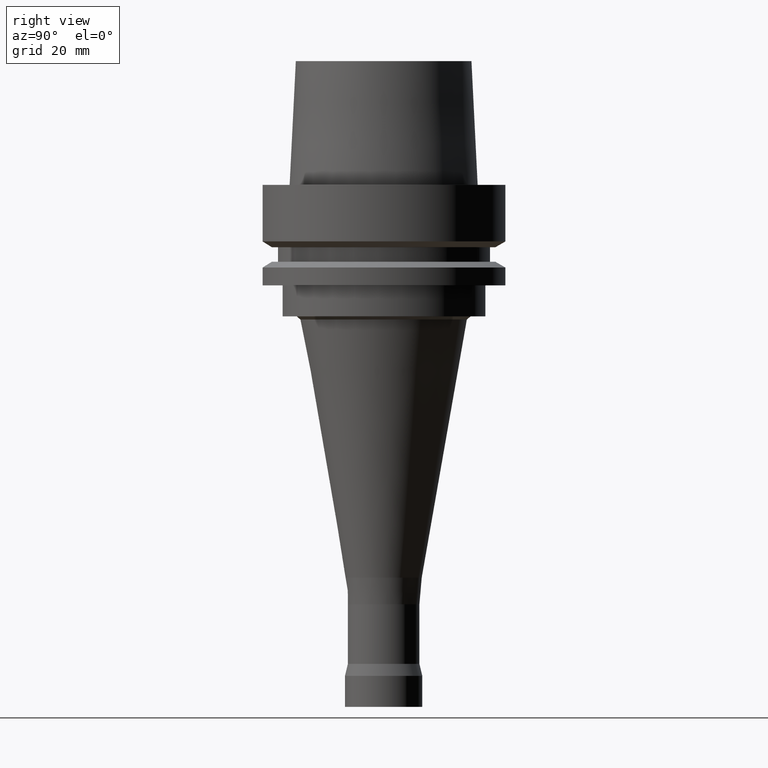
[diagram: clean part render]
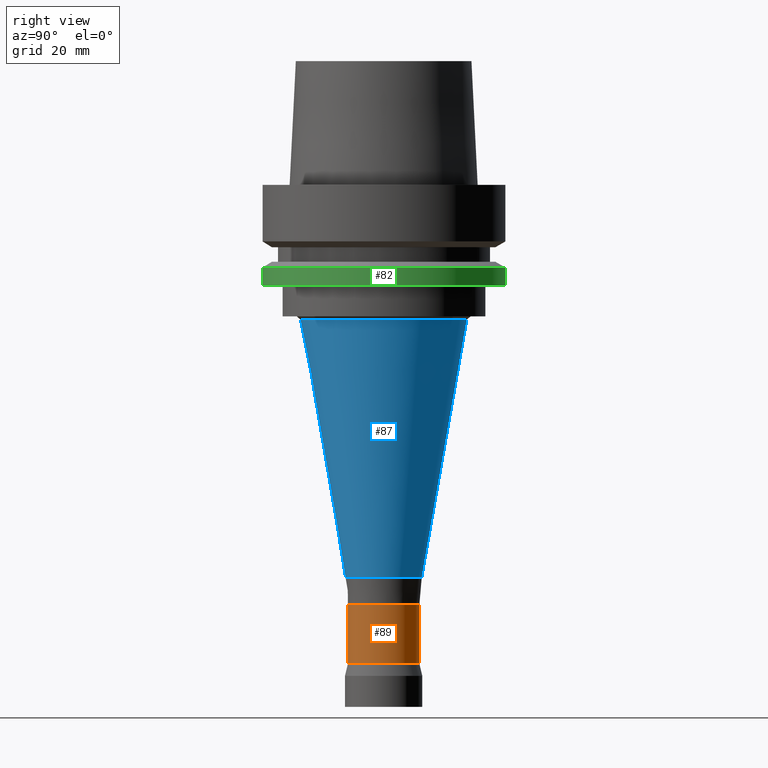
[diagram: same view with three faces highlighted in distinct colors, each labeled with its STEP entity id]
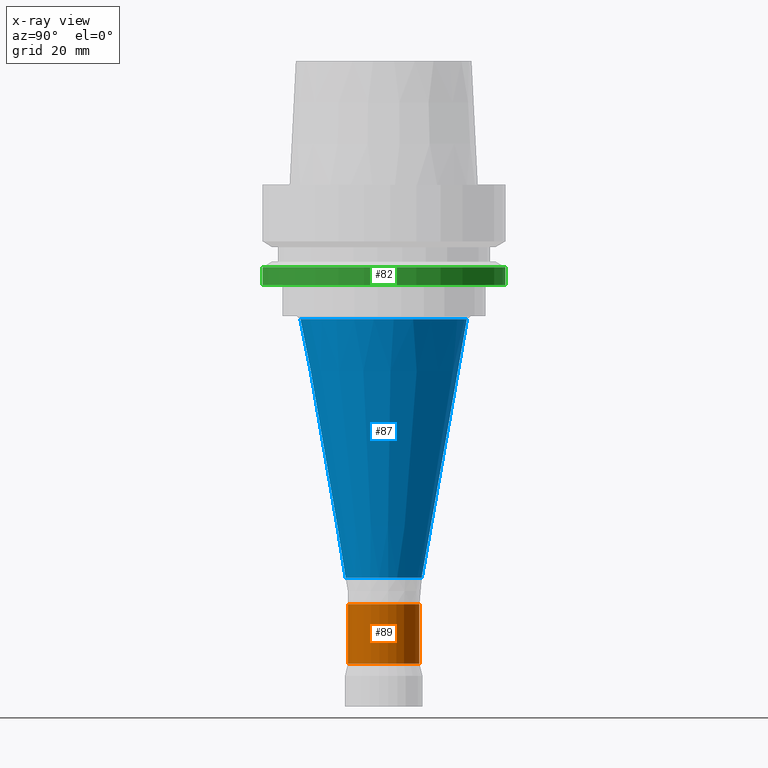
[diagram: x-ray of the same camera — body ghosted, the three highlighted faces saturated]
A machine part, right view with three faces highlighted in distinct colors.
The next image is the same camera in x-ray (body ghosted, the three faces saturated) — at least one of them is partly hidden behind the body in this view.
Their STEP definitions:

[orange] entity #89 — the highlighted cylindrical surface (bore or boss wall) has radius 9.25 mm, axis along (-0, -0, 1).
#89=ADVANCED_FACE('',(#138,#139),#140,.T.);
#138=FACE_BOUND('',#196,.T.);
#139=FACE_BOUND('',#197,.T.);
#140=CYLINDRICAL_SURFACE('',#198,9.25);
#196=EDGE_LOOP('',(#282));
#197=EDGE_LOOP('',(#283));
#198=AXIS2_PLACEMENT_3D('',#284,#285,#286);
#282=ORIENTED_EDGE('',*,*,#325,.F.);
#283=ORIENTED_EDGE('',*,*,#324,.T.);
#284=CARTESIAN_POINT('',(7.11351696785154E-015,1.42270339357031E-014,-116.172548245));
#285=DIRECTION('',(-6.12323399573677E-017,-1.22464679914735E-016,1.0));
#286=DIRECTION('',(-1.23259516440783E-032,1.0,1.22464679914735E-016));
#324=EDGE_CURVE('',#357,#357,#358,.T.);
#325=EDGE_CURVE('',#359,#359,#360,.T.);
#357=VERTEX_POINT('',#395);
#358=CIRCLE('',#396,9.25);
#359=VERTEX_POINT('',#397);
#360=CIRCLE('',#398,9.25);
#395=CARTESIAN_POINT('',(6.64183341901586E-015,9.25000000000001,-108.46937131));
#396=AXIS2_PLACEMENT_3D('',#447,#448,#449);
#397=CARTESIAN_POINT('',(7.58520051668721E-015,9.25000000000002,-123.87572518));
#398=AXIS2_PLACEMENT_3D('',#450,#451,#452);
#447=CARTESIAN_POINT('',(6.64183341901586E-015,1.32836668380317E-014,-108.46937131));
#448=DIRECTION('',(6.12323399573677E-017,1.22464679914735E-016,-1.0));
#449=DIRECTION('',(-1.23259516440783E-032,1.0,1.22464679914735E-016));
#450=CARTESIAN_POINT('',(7.58520051668721E-015,1.51704010333744E-014,-123.87572518));
#451=DIRECTION('',(6.12323399573677E-017,1.22464679914735E-016,-1.0));
#452=DIRECTION('',(-1.23259516440783E-032,1.0,1.22464679914735E-016));

[blue] entity #87 — the highlighted conical surface has half-angle 9.914 deg.
#87=ADVANCED_FACE('',(#132,#133),#134,.T.);
#132=FACE_BOUND('',#190,.T.);
#133=FACE_BOUND('',#191,.T.);
#134=CONICAL_SURFACE('',#192,15.68113328,0.173035526577941);
#190=EDGE_LOOP('',(#272));
#191=EDGE_LOOP('',(#273));
#192=AXIS2_PLACEMENT_3D('',#274,#275,#276);
#272=ORIENTED_EDGE('',*,*,#323,.F.);
#273=ORIENTED_EDGE('',*,*,#322,.T.);
#274=CARTESIAN_POINT('',(4.17635984874932E-015,8.35271969749864E-015,-68.205132315));
#275=DIRECTION('',(-6.12323399573677E-017,-1.22464679914735E-016,1.0));
#276=DIRECTION('',(-1.23259516440783E-032,1.0,1.22464679914735E-016));
#322=EDGE_CURVE('',#353,#353,#354,.T.);
#323=EDGE_CURVE('',#355,#355,#356,.T.);
#353=VERTEX_POINT('',#391);
#354=CIRCLE('',#392,21.51493333);
#355=VERTEX_POINT('',#393);
#356=CIRCLE('',#394,9.84733323);
#391=CARTESIAN_POINT('',(2.13258932263372E-015,21.51493333,-34.82782667));
#392=AXIS2_PLACEMENT_3D('',#441,#442,#443);
#393=CARTESIAN_POINT('',(6.22013037486493E-015,9.84733323000001,-101.58243796));
#394=AXIS2_PLACEMENT_3D('',#444,#445,#446);
#441=CARTESIAN_POINT('',(2.13258932263372E-015,4.26517864526743E-015,-34.82782667));
#442=DIRECTION('',(6.12323399573676E-017,1.22464679914735E-016,-1.0));
#443=DIRECTION('',(-1.23259516440783E-032,1.0,1.22464679914735E-016));
#444=CARTESIAN_POINT('',(6.22013037486493E-015,1.24402607497299E-014,-101.58243796));
#445=DIRECTION('',(6.12323399573677E-017,1.22464679914735E-016,-1.0));
#446=DIRECTION('',(-1.23259516440783E-032,1.0,1.22464679914735E-016));

[green] entity #82 — the highlighted cylindrical surface (bore or boss wall) has radius 31.5 mm, axis along (-0, -0, 1).
#82=ADVANCED_FACE('',(#117,#118),#119,.T.);
#117=FACE_BOUND('',#175,.T.);
#118=FACE_BOUND('',#176,.T.);
#119=CYLINDRICAL_SURFACE('',#177,31.5);
#175=EDGE_LOOP('',(#247));
#176=EDGE_LOOP('',(#248));
#177=AXIS2_PLACEMENT_3D('',#249,#250,#251);
#247=ORIENTED_EDGE('',*,*,#318,.F.);
#248=ORIENTED_EDGE('',*,*,#317,.T.);
#249=CARTESIAN_POINT('',(1.45051756469205E-015,2.90103512938411E-015,-23.688749535));
#250=DIRECTION('',(-6.12323399573677E-017,-1.22464679914735E-016,1.0));
#251=DIRECTION('',(-1.23259516440783E-032,1.0,1.22464679914735E-016));
#317=EDGE_CURVE('',#343,#343,#344,.T.);
#318=EDGE_CURVE('',#345,#345,#346,.T.);
#343=VERTEX_POINT('',#381);
#344=CIRCLE('',#382,31.5);
#345=VERTEX_POINT('',#383);
#346=CIRCLE('',#384,31.5);
#381=CARTESIAN_POINT('',(1.30899429049255E-015,31.5,-21.37749907));
#382=AXIS2_PLACEMENT_3D('',#426,#427,#428);
#383=CARTESIAN_POINT('',(1.59204083889156E-015,31.5,-26.0));
#384=AXIS2_PLACEMENT_3D('',#429,#430,#431);
#426=CARTESIAN_POINT('',(1.30899429049255E-015,2.6179885809851E-015,-21.37749907));
#427=DIRECTION('',(6.12323399573677E-017,1.22464679914735E-016,-1.0));
#428=DIRECTION('',(-1.23259516440783E-032,1.0,1.22464679914735E-016));
#429=CARTESIAN_POINT('',(1.59204083889156E-015,3.18408167778312E-015,-26.0));
#430=DIRECTION('',(6.12323399573677E-017,1.22464679914735E-016,-1.0));
#431=DIRECTION('',(-1.23259516440783E-032,1.0,1.22464679914735E-016));